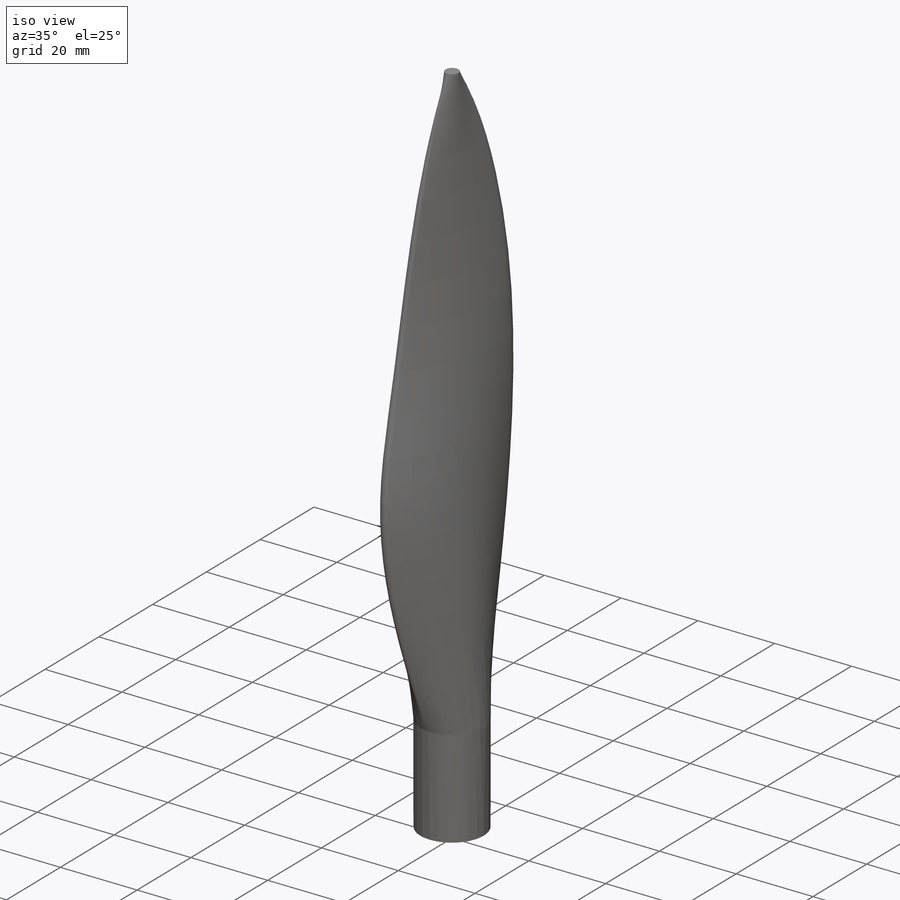
[diagram: iso view]
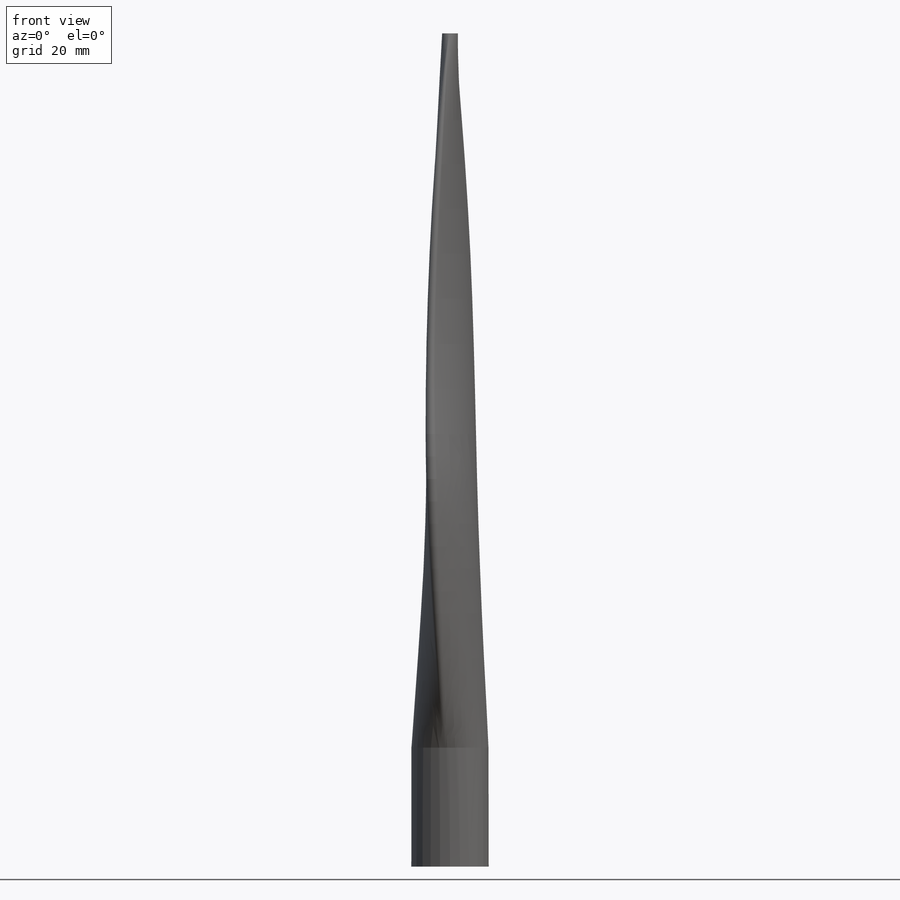
[diagram: front view]
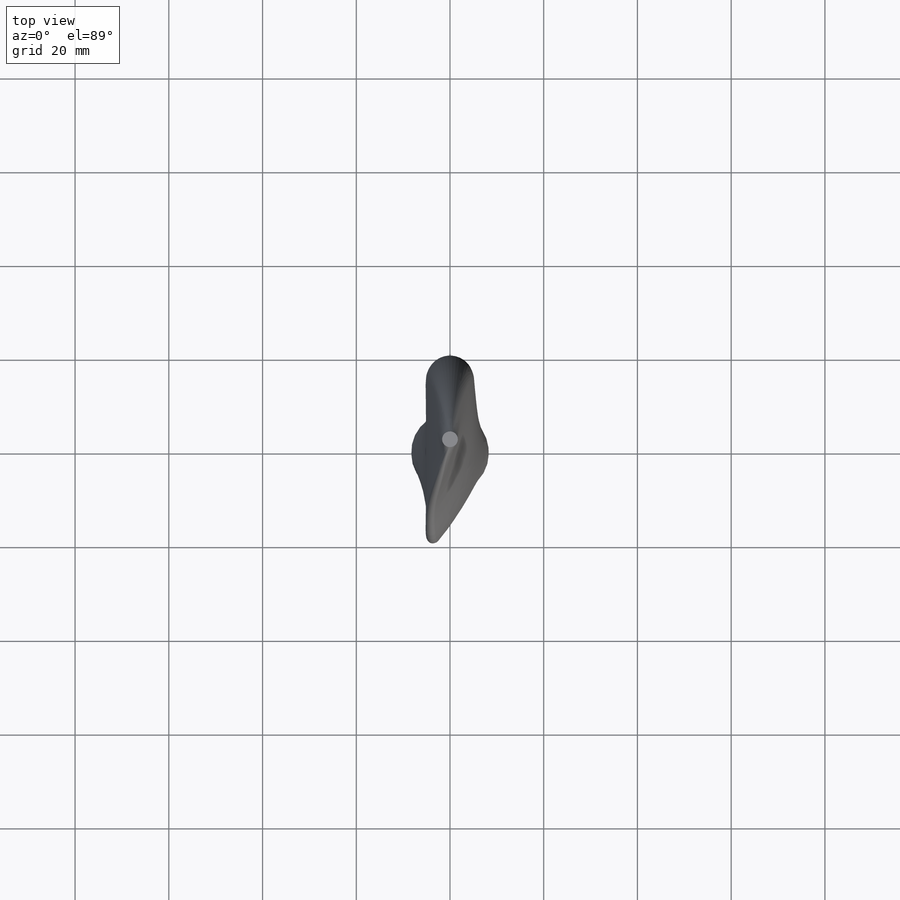
[diagram: top view]
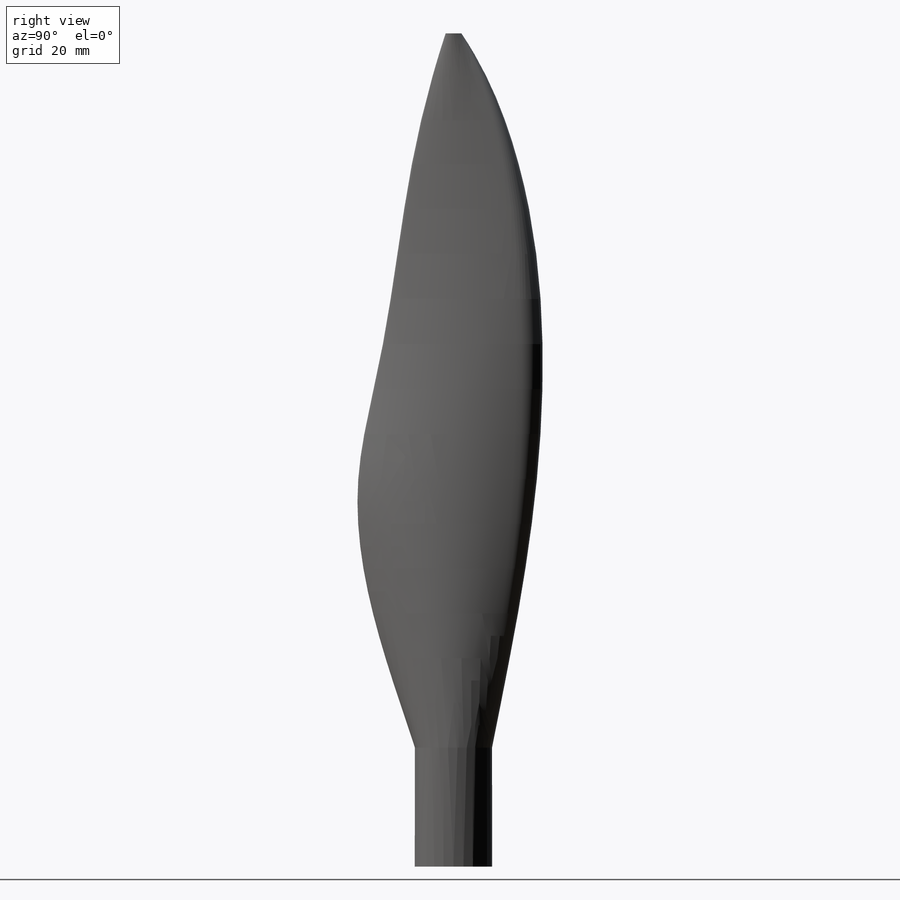
[diagram: right view]
SOLIDWORKS PART (.sldprt)
format: sldprt  version: not decoded by parser v0  size: 245,760 bytes
history: native  units: mm
features: sketch x5, plane x4, material x1, extrude x1 (+13 scaffold rows collapsed)
feature tree (24):
  scaffold x13  (default folders/planes/origin — collapsed)
  material  "Material <not specified>"
  sketch  "Sketch1"  dims[D1=16.51mm]
  extrude  "Boss-Extrude1"  Depth=25.4mm
  plane  "Plane1"  Offset=82.55mm
  sketch  "Sketch3"  dims[c1.D1=5.08mm c1.D2=1.27mm c1.D3=41.656mm c1.D6=5.08mm c2.D1=10.16mm c2.D2=2.54mm c2.D3=41.656mm c3.D1=10.16mm c3.D2=2.54mm c3.D6=41.656mm c3.D4=12.7mm c3.D5=19.05mm c4.D6=~19.346199mm c4.D5=5.08mm c4.D4=19.05mm c5.D5=12.7mm c5.D6=5.08mm c5.D3=19.05mm c5.D4=12.7mm c6.D5=5.08mm]
  plane  "Plane2"  Offset=107.95mm
  sketch  "Sketch5"  dims[D1=10.16mm D2=2.032mm D3=45.974mm D4=14.732mm D5=13.97mm D6=5.08mm]
  plane  "Plane3"  Offset=152.4mm
  sketch  "Sketch6"  dims[D1=6.096mm D2=1.524mm D3=41.656mm D4=7.62mm D5=10.16mm]
  plane  "Plane4"  Offset=177.8mm
  sketch  "Sketch9"
decode coverage: 5 of 6 modeling features carry decoded parameters
note: ~ marks probable driven/reference dimensions
note: suppression state not decoded; provenance and decode notes live in map.json
